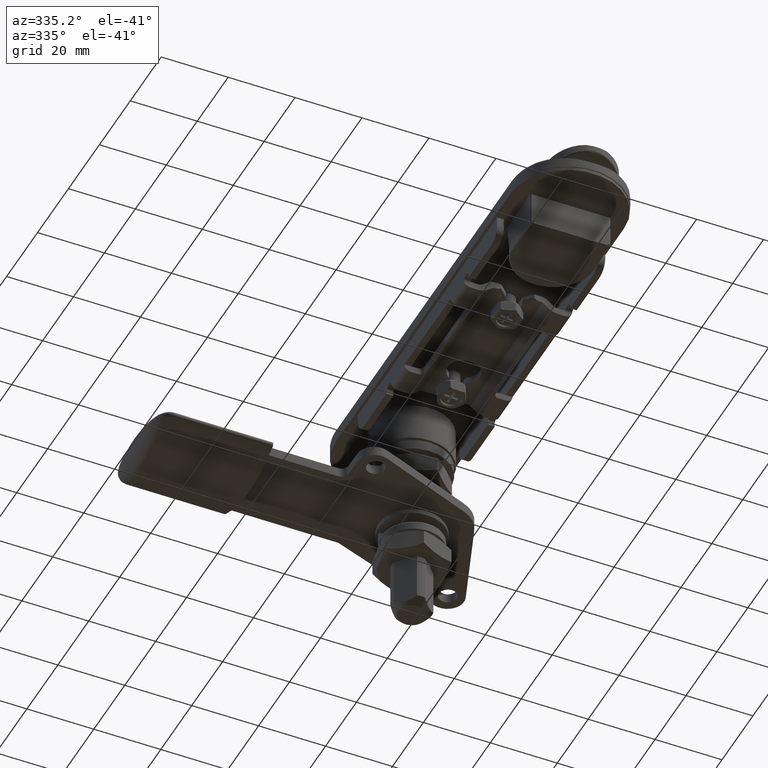
[diagram: clean part render]
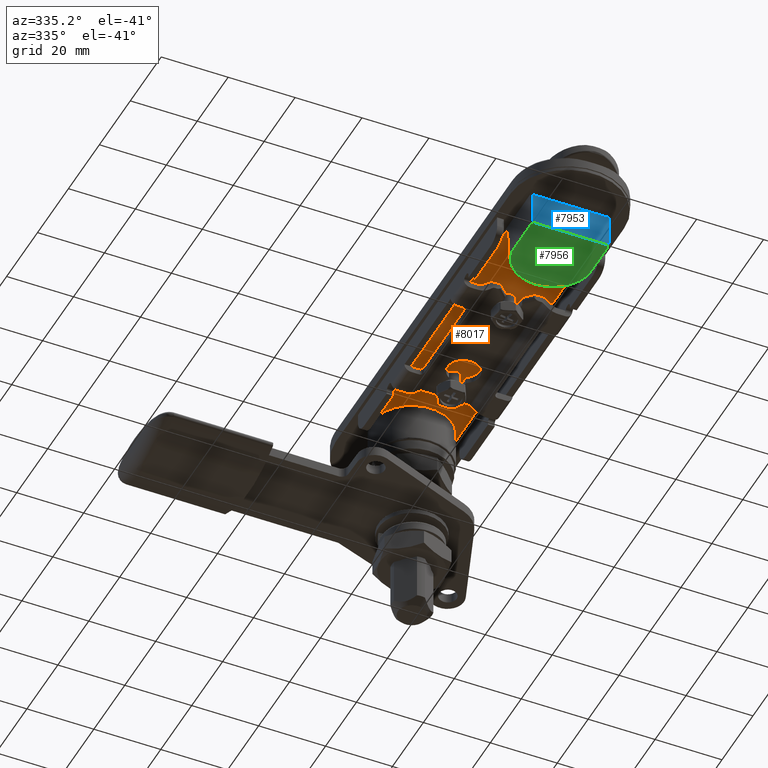
[diagram: same view with three faces highlighted in distinct colors, each labeled with its STEP entity id]
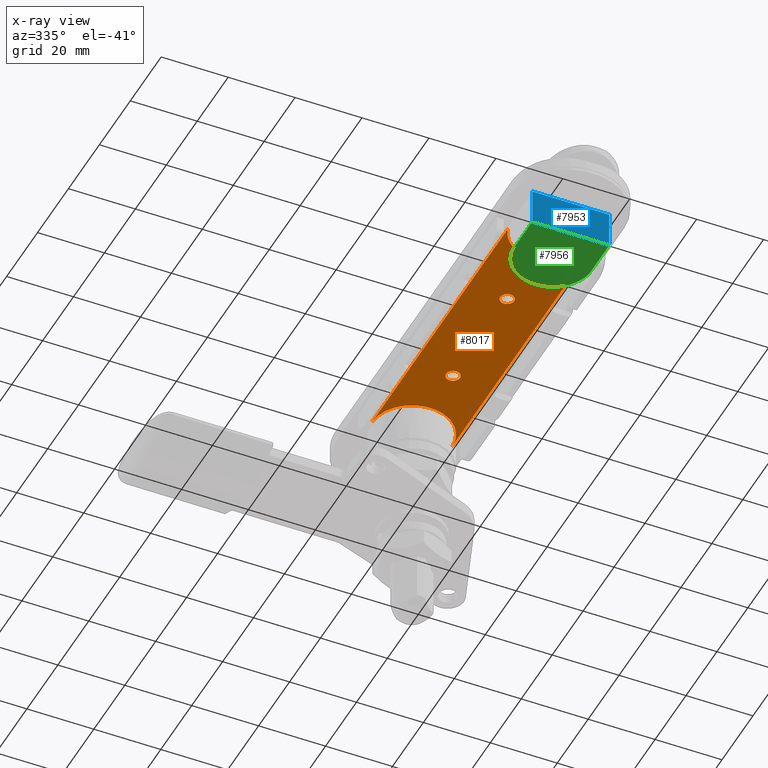
[diagram: x-ray of the same camera — body ghosted, the three highlighted faces saturated]
A machine part, auxiliary view with three faces highlighted in distinct colors.
The next image is the same camera in x-ray (body ghosted, the three faces saturated) — at least one of them is partly hidden behind the body in this view.
Their STEP definitions:

[orange] entity #8017 — the highlighted planar face has unit normal (0, 0, 1).
#479=B_SPLINE_CURVE_WITH_KNOTS('',3,(#12615,#12616,#12617,#12618,#12619,
#12620,#12621,#12622,#12623,#12624),.UNSPECIFIED.,.F.,.F.,(4,1,1,1,1,1,
1,4),(-1.,-0.857142857142857,-0.714285714285714,-0.571428571428571,-0.428571428571429,
-0.285714285714286,-0.142857142857143,0.),.UNSPECIFIED.);
#604=FACE_BOUND('',#1628,.T.);
#605=FACE_BOUND('',#1629,.T.);
#726=CIRCLE('',#8540,2.067);
#727=CIRCLE('',#8542,2.067);
#738=CIRCLE('',#8563,12.);
#1130=FACE_OUTER_BOUND('',#1627,.T.);
#1627=EDGE_LOOP('',(#5648,#5649,#5650,#5651));
#1628=EDGE_LOOP('',(#5652));
#1629=EDGE_LOOP('',(#5653));
#2184=LINE('',#12551,#2794);
#2199=LINE('',#12614,#2809);
#2794=VECTOR('',#9591,87.8);
#2809=VECTOR('',#9634,87.8);
#3436=VERTEX_POINT('',#12408);
#3437=VERTEX_POINT('',#12411);
#3447=VERTEX_POINT('',#12548);
#3448=VERTEX_POINT('',#12550);
#3456=VERTEX_POINT('',#12587);
#3462=VERTEX_POINT('',#12613);
#4264=EDGE_CURVE('',#3436,#3436,#726,.T.);
#4265=EDGE_CURVE('',#3437,#3437,#727,.T.);
#4284=EDGE_CURVE('',#3448,#3447,#2184,.T.);
#4294=EDGE_CURVE('',#3447,#3456,#738,.T.);
#4307=EDGE_CURVE('',#3456,#3462,#2199,.T.);
#4308=EDGE_CURVE('',#3462,#3448,#479,.T.);
#5648=ORIENTED_EDGE('',*,*,#4294,.T.);
#5649=ORIENTED_EDGE('',*,*,#4307,.T.);
#5650=ORIENTED_EDGE('',*,*,#4308,.T.);
#5651=ORIENTED_EDGE('',*,*,#4284,.T.);
#5652=ORIENTED_EDGE('',*,*,#4264,.T.);
#5653=ORIENTED_EDGE('',*,*,#4265,.T.);
#7755=PLANE('',#8571);
#8017=ADVANCED_FACE('',(#1130,#604,#605),#7755,.F.);
#8540=AXIS2_PLACEMENT_3D('',#12409,#9549,#9550);
#8542=AXIS2_PLACEMENT_3D('',#12412,#9553,#9554);
#8563=AXIS2_PLACEMENT_3D('',#12589,#9606,#9607);
#8571=AXIS2_PLACEMENT_3D('',#12612,#9632,#9633);
#9549=DIRECTION('center_axis',(0.,0.,1.));
#9550=DIRECTION('ref_axis',(-1.,0.,0.));
#9553=DIRECTION('center_axis',(0.,0.,1.));
#9554=DIRECTION('ref_axis',(-1.,0.,0.));
#9591=DIRECTION('',(0.,1.,0.));
#9606=DIRECTION('center_axis',(0.,0.,1.));
#9607=DIRECTION('ref_axis',(1.,0.,0.));
#9632=DIRECTION('center_axis',(0.,0.,1.));
#9633=DIRECTION('ref_axis',(1.,0.,0.));
#9634=DIRECTION('',(-2.1599669739789E-17,-1.,0.));
#12408=CARTESIAN_POINT('',(-2.067,17.5,-2.));
#12409=CARTESIAN_POINT('Origin',(0.,17.5,-2.));
#12411=CARTESIAN_POINT('',(-2.067,-17.5,-2.));
#12412=CARTESIAN_POINT('Origin',(0.,-17.5,-2.));
#12548=CARTESIAN_POINT('',(-12.,44.15,-2.));
#12550=CARTESIAN_POINT('',(-12.,-43.65,-2.));
#12551=CARTESIAN_POINT('',(-12.,-58.65,-2.));
#12587=CARTESIAN_POINT('',(12.,44.15,-2.));
#12589=CARTESIAN_POINT('Origin',(-2.7750496468679E-14,44.15,-2.));
#12612=CARTESIAN_POINT('Origin',(-2.84798695448754E-14,44.15,-2.));
#12613=CARTESIAN_POINT('',(12.,-43.65,-2.));
#12614=CARTESIAN_POINT('',(12.,44.15,-2.));
#12615=CARTESIAN_POINT('Ctrl Pts',(12.,-43.65,-2.));
#12616=CARTESIAN_POINT('Ctrl Pts',(11.5045455993482,-42.2413212859518,-2.));
#12617=CARTESIAN_POINT('Ctrl Pts',(10.0128712494308,-39.6000825557098,-2.));
#12618=CARTESIAN_POINT('Ctrl Pts',(6.54520267345058,-36.654814248179,-2.));
#12619=CARTESIAN_POINT('Ctrl Pts',(2.27495744698646,-35.0842184398647,-2.));
#12620=CARTESIAN_POINT('Ctrl Pts',(-2.27487001759428,-35.0854699355556,
-2.));
#12621=CARTESIAN_POINT('Ctrl Pts',(-6.54582439172664,-36.6536405012078,
-2.));
#12622=CARTESIAN_POINT('Ctrl Pts',(-10.0124845528756,-39.6008096811979,
-2.));
#12623=CARTESIAN_POINT('Ctrl Pts',(-11.5045455993483,-42.2413212859518,
-2.));
#12624=CARTESIAN_POINT('Ctrl Pts',(-12.,-43.65,-2.));

[blue] entity #7953 — the highlighted planar face has unit normal (0, -1, 0).
#1066=FACE_OUTER_BOUND('',#1560,.T.);
#1560=EDGE_LOOP('',(#5348,#5349,#5350,#5351,#5352,#5353,#5354,#5355));
#2137=LINE('',#11716,#2747);
#2138=LINE('',#11718,#2748);
#2139=LINE('',#11720,#2749);
#2140=LINE('',#11722,#2750);
#2141=LINE('',#11724,#2751);
#2142=LINE('',#11726,#2752);
#2143=LINE('',#11728,#2753);
#2144=LINE('',#11729,#2754);
#2747=VECTOR('',#9356,23.);
#2748=VECTOR('',#9357,10.5);
#2749=VECTOR('',#9358,0.500000000000029);
#2750=VECTOR('',#9359,0.499999999999992);
#2751=VECTOR('',#9360,22.);
#2752=VECTOR('',#9361,0.500000000000003);
#2753=VECTOR('',#9362,0.499999999999972);
#2754=VECTOR('',#9363,10.5);
#3359=VERTEX_POINT('',#11714);
#3360=VERTEX_POINT('',#11715);
#3361=VERTEX_POINT('',#11717);
#3362=VERTEX_POINT('',#11719);
#3363=VERTEX_POINT('',#11721);
#3364=VERTEX_POINT('',#11723);
#3365=VERTEX_POINT('',#11725);
#3366=VERTEX_POINT('',#11727);
#4143=EDGE_CURVE('',#3359,#3360,#2137,.T.);
#4144=EDGE_CURVE('',#3361,#3359,#2138,.T.);
#4145=EDGE_CURVE('',#3362,#3361,#2139,.T.);
#4146=EDGE_CURVE('',#3362,#3363,#2140,.T.);
#4147=EDGE_CURVE('',#3364,#3363,#2141,.T.);
#4148=EDGE_CURVE('',#3365,#3364,#2142,.T.);
#4149=EDGE_CURVE('',#3366,#3365,#2143,.T.);
#4150=EDGE_CURVE('',#3360,#3366,#2144,.T.);
#5348=ORIENTED_EDGE('',*,*,#4143,.F.);
#5349=ORIENTED_EDGE('',*,*,#4144,.F.);
#5350=ORIENTED_EDGE('',*,*,#4145,.F.);
#5351=ORIENTED_EDGE('',*,*,#4146,.T.);
#5352=ORIENTED_EDGE('',*,*,#4147,.F.);
#5353=ORIENTED_EDGE('',*,*,#4148,.F.);
#5354=ORIENTED_EDGE('',*,*,#4149,.F.);
#5355=ORIENTED_EDGE('',*,*,#4150,.F.);
#7737=PLANE('',#8463);
#7953=ADVANCED_FACE('',(#1066),#7737,.T.);
#8463=AXIS2_PLACEMENT_3D('',#11713,#9354,#9355);
#9354=DIRECTION('center_axis',(3.70074341541719E-16,-1.,0.));
#9355=DIRECTION('ref_axis',(-1.,-7.105427357601E-16,0.));
#9356=DIRECTION('',(1.,3.70074341541719E-16,0.));
#9357=DIRECTION('',(0.,0.,1.));
#9358=DIRECTION('',(-1.,-3.70074341541719E-16,3.80352387212172E-32));
#9359=DIRECTION('',(-4.03717463500057E-16,0.,-1.));
#9360=DIRECTION('',(-1.,2.88896893471442E-34,4.80264216084358E-16));
#9361=DIRECTION('',(-4.03717463500057E-16,0.,-1.));
#9362=DIRECTION('',(-1.,-3.70074341541719E-16,3.80352387212172E-32));
#9363=DIRECTION('',(0.,0.,-1.));
#11713=CARTESIAN_POINT('Origin',(12.,-58.65,0.));
#11714=CARTESIAN_POINT('',(-11.5,-58.65,0.));
#11715=CARTESIAN_POINT('',(11.5,-58.65,0.));
#11716=CARTESIAN_POINT('',(5.99999999999999,-58.65,0.));
#11717=CARTESIAN_POINT('',(-11.5,-58.65,-10.5));
#11718=CARTESIAN_POINT('',(-11.5,-58.65,0.));
#11719=CARTESIAN_POINT('',(-11.,-58.65,-10.5));
#11720=CARTESIAN_POINT('',(5.99999999999998,-58.65,-10.5));
#11721=CARTESIAN_POINT('',(-11.,-58.65,-11.));
#11722=CARTESIAN_POINT('',(-11.,-58.65,1.24107926626868E-14));
#11723=CARTESIAN_POINT('',(11.,-58.65,-11.));
#11724=CARTESIAN_POINT('',(-11.,-58.65,-11.));
#11725=CARTESIAN_POINT('',(11.,-58.65,-10.5));
#11726=CARTESIAN_POINT('',(11.,-58.65,1.84497990883091E-15));
#11727=CARTESIAN_POINT('',(11.5,-58.65,-10.5));
#11728=CARTESIAN_POINT('',(5.99999999999998,-58.65,-10.5));
#11729=CARTESIAN_POINT('',(11.5,-58.65,0.));

[green] entity #7956 — the highlighted planar face has unit normal (0, -0, 1).
#437=B_SPLINE_CURVE_WITH_KNOTS('',3,(#11744,#11745,#11746,#11747,#11748,
#11749,#11750,#11751,#11752,#11753),.UNSPECIFIED.,.F.,.F.,(4,1,1,1,1,1,
1,4),(-3.85503410944758,-3.30386688660355,-2.75269966375952,-2.20153244091549,
-1.65036521807146,-1.09919799522743,-0.548030772383402,0.00313645046062816),
 .UNSPECIFIED.);
#1069=FACE_OUTER_BOUND('',#1563,.T.);
#1563=EDGE_LOOP('',(#5362,#5363,#5364,#5365,#5366,#5367,#5368,#5369));
#2141=LINE('',#11724,#2751);
#2145=LINE('',#11733,#2755);
#2146=LINE('',#11737,#2756);
#2147=LINE('',#11740,#2757);
#2148=LINE('',#11742,#2758);
#2149=LINE('',#11755,#2759);
#2150=LINE('',#11756,#2760);
#2751=VECTOR('',#9360,22.);
#2755=VECTOR('',#9368,0.500000000000007);
#2756=VECTOR('',#9373,0.499999999999998);
#2757=VECTOR('',#9376,0.500000000000029);
#2758=VECTOR('',#9377,9.81006673502994);
#2759=VECTOR('',#9378,9.81006673502998);
#2760=VECTOR('',#9379,0.499999999999969);
#3363=VERTEX_POINT('',#11721);
#3364=VERTEX_POINT('',#11723);
#3367=VERTEX_POINT('',#11731);
#3368=VERTEX_POINT('',#11735);
#3369=VERTEX_POINT('',#11739);
#3370=VERTEX_POINT('',#11741);
#3371=VERTEX_POINT('',#11743);
#3372=VERTEX_POINT('',#11754);
#4147=EDGE_CURVE('',#3364,#3363,#2141,.T.);
#4152=EDGE_CURVE('',#3367,#3364,#2145,.T.);
#4154=EDGE_CURVE('',#3363,#3368,#2146,.T.);
#4155=EDGE_CURVE('',#3369,#3368,#2147,.T.);
#4156=EDGE_CURVE('',#3370,#3369,#2148,.T.);
#4157=EDGE_CURVE('',#3371,#3370,#437,.T.);
#4158=EDGE_CURVE('',#3372,#3371,#2149,.T.);
#4159=EDGE_CURVE('',#3367,#3372,#2150,.T.);
#5362=ORIENTED_EDGE('',*,*,#4155,.F.);
#5363=ORIENTED_EDGE('',*,*,#4156,.F.);
#5364=ORIENTED_EDGE('',*,*,#4157,.F.);
#5365=ORIENTED_EDGE('',*,*,#4158,.F.);
#5366=ORIENTED_EDGE('',*,*,#4159,.F.);
#5367=ORIENTED_EDGE('',*,*,#4152,.T.);
#5368=ORIENTED_EDGE('',*,*,#4147,.T.);
#5369=ORIENTED_EDGE('',*,*,#4154,.T.);
#7740=PLANE('',#8468);
#7956=ADVANCED_FACE('',(#1069),#7740,.F.);
#8468=AXIS2_PLACEMENT_3D('',#11738,#9374,#9375);
#9360=DIRECTION('',(-1.,2.88896893471442E-34,4.80264216084358E-16));
#9368=DIRECTION('',(3.53022810210327E-16,-1.,-1.87414128108261E-18));
#9373=DIRECTION('',(-3.53022810210313E-16,1.,1.87414128108261E-18));
#9374=DIRECTION('center_axis',(3.80352387212174E-32,-5.37530772735708E-31,
1.));
#9375=DIRECTION('ref_axis',(1.,0.,0.));
#9376=DIRECTION('',(1.,3.70074341541719E-16,-3.80352387212172E-32));
#9377=DIRECTION('',(0.,-1.,-5.37530772735708E-31));
#9378=DIRECTION('',(2.1599669739789E-17,1.,5.37530772735708E-31));
#9379=DIRECTION('',(1.,3.70074341541719E-16,-3.80352387212172E-32));
#11721=CARTESIAN_POINT('',(-11.,-58.65,-11.));
#11723=CARTESIAN_POINT('',(11.,-58.65,-11.));
#11724=CARTESIAN_POINT('',(-11.,-58.65,-11.));
#11731=CARTESIAN_POINT('',(11.,-58.15,-11.));
#11733=CARTESIAN_POINT('',(11.,-58.65,-11.));
#11735=CARTESIAN_POINT('',(-11.,-58.15,-11.));
#11737=CARTESIAN_POINT('',(-11.,-46.0703819978234,-11.));
#11738=CARTESIAN_POINT('Origin',(-2.692290834716E-14,-48.9604551549079,
-11.));
#11739=CARTESIAN_POINT('',(-11.5,-58.15,-11.));
#11740=CARTESIAN_POINT('',(5.99999999999998,-58.15,-11.));
#11741=CARTESIAN_POINT('',(-11.5,-48.3399332649701,-11.));
#11742=CARTESIAN_POINT('',(-11.5,-53.805227577454,-11.));
#11743=CARTESIAN_POINT('',(11.5,-48.33993326497,-11.));
#11744=CARTESIAN_POINT('Ctrl Pts',(11.5,-48.33993326497,-11.));
#11745=CARTESIAN_POINT('Ctrl Pts',(11.683545884001,-46.5119054337119,-11.));
#11746=CARTESIAN_POINT('Ctrl Pts',(11.157471813046,-42.7685479468459,-11.));
#11747=CARTESIAN_POINT('Ctrl Pts',(7.87570857389768,-38.1416752689964,-11.));
#11748=CARTESIAN_POINT('Ctrl Pts',(2.83512144515452,-35.5440205237877,-11.));
#11749=CARTESIAN_POINT('Ctrl Pts',(-2.83565034779535,-35.5406204015538,
-11.));
#11750=CARTESIAN_POINT('Ctrl Pts',(-7.8738956821809,-38.1445744419302,-11.));
#11751=CARTESIAN_POINT('Ctrl Pts',(-11.1589355771924,-42.7667317275519,
-11.));
#11752=CARTESIAN_POINT('Ctrl Pts',(-11.6835458840011,-46.5119054337119,
-11.));
#11753=CARTESIAN_POINT('Ctrl Pts',(-11.5,-48.3399332649701,-11.));
#11754=CARTESIAN_POINT('',(11.5,-58.15,-11.));
#11755=CARTESIAN_POINT('',(11.5,-2.40522757745396,-11.));
#11756=CARTESIAN_POINT('',(5.99999999999998,-58.15,-11.));